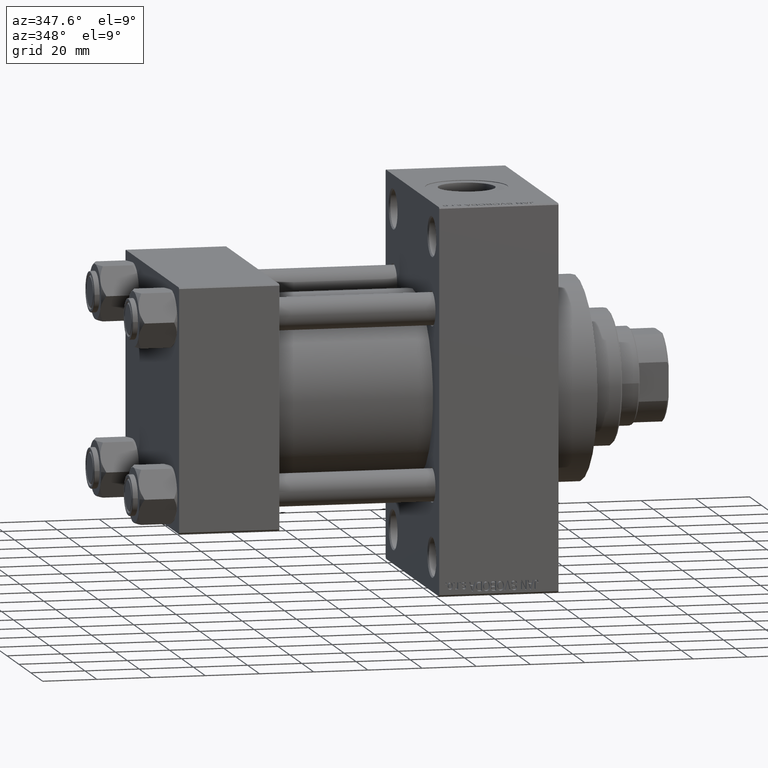
[diagram: clean part render]
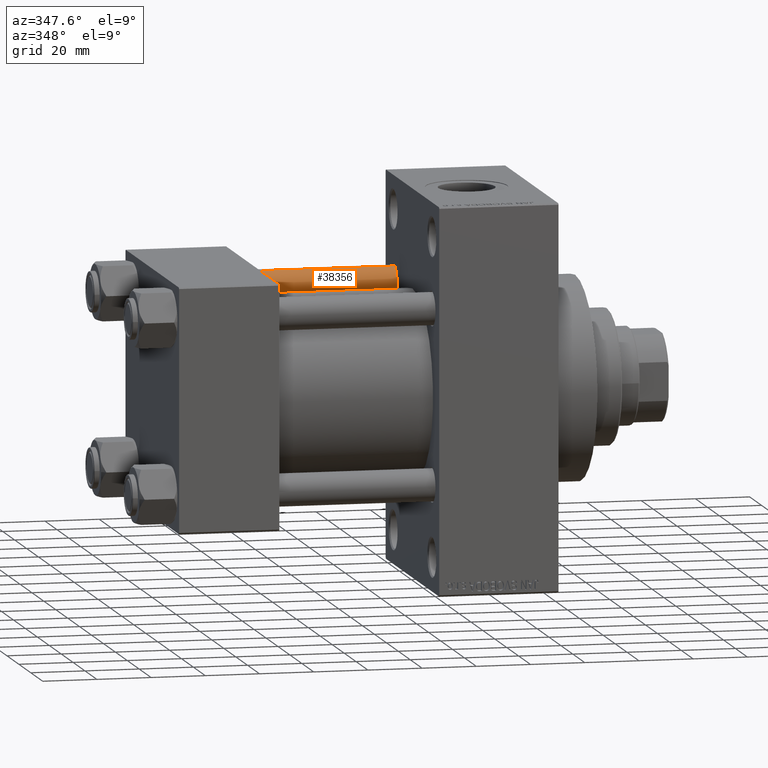
[diagram: same view with one face highlighted and labeled with its STEP entity id]
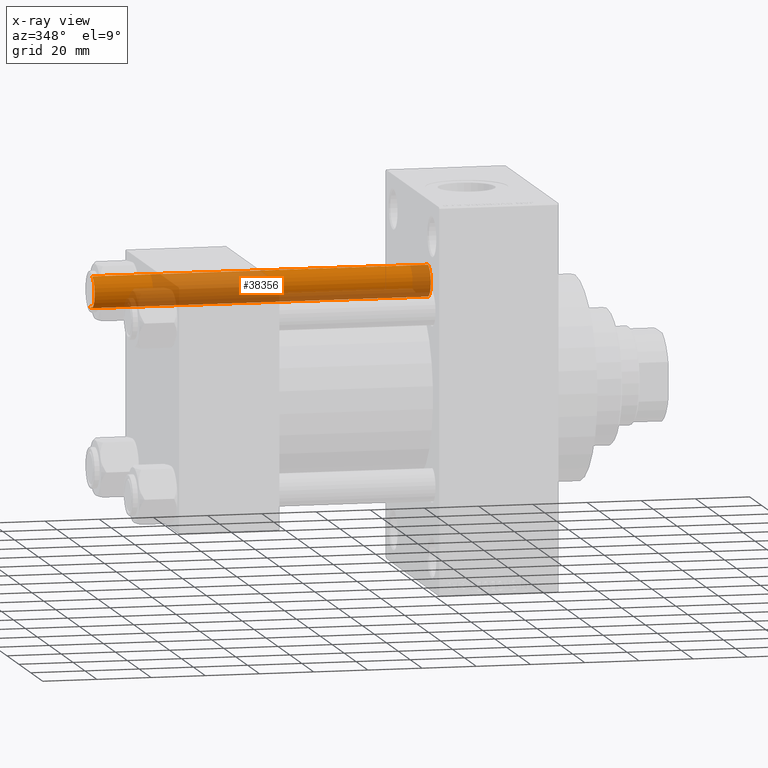
[diagram: x-ray of the same camera — body ghosted, the highlighted face saturated]
A machine part, auxiliary view. The second image highlights one B-rep face of the part: STEP entity #38356.
The next image is the same camera in x-ray: the body ghosted, the highlighted face saturated — about 57% of this face is hidden behind the body in this view.
In plain terms, the highlighted cylindrical surface (edge-blend (fillet) strip) has radius 6 mm, axis along (-1, -0, 0).
Its self-contained STEP definition (entity closure, byte-faithful):
#1490 = DIRECTION ( 'NONE',  ( -0.000000000000000000, -0.000000000000000000, 1.000000000000000000 ) ) ;
#1529 = VERTEX_POINT ( 'NONE', #5859 ) ;
#1657 = EDGE_CURVE ( 'NONE', #21189, #8514, #6330, .T. ) ;
#2289 = EDGE_CURVE ( 'NONE', #31427, #1529, #16494, .T. ) ;
#3182 = VECTOR ( 'NONE', #12676, 1000.000000000000000 ) ;
#5859 = CARTESIAN_POINT ( 'NONE',  ( 6.000000000000000888, 7.347880794884120722E-16, 0.4999999999999865663 ) ) ;
#6330 = LINE ( 'NONE', #20904, #31313 ) ;
#7357 = ORIENTED_EDGE ( 'NONE', *, *, #1657, .T. ) ;
#8514 = VERTEX_POINT ( 'NONE', #35728 ) ;
#12216 = DIRECTION ( 'NONE',  ( 1.000000000000000000, 0.000000000000000000, 0.000000000000000000 ) ) ;
#12395 = CIRCLE ( 'NONE', #22283, 6.000000000000000888 ) ;
#12676 = DIRECTION ( 'NONE',  ( -0.000000000000000000, -0.000000000000000000, -1.000000000000000000 ) ) ;
#15251 = AXIS2_PLACEMENT_3D ( 'NONE', #39301, #21409, #21648 ) ;
#15615 = ORIENTED_EDGE ( 'NONE', *, *, #2289, .F. ) ;
#16494 = LINE ( 'NONE', #26795, #3182 ) ;
#16739 = CYLINDRICAL_SURFACE ( 'NONE', #19823, 6.000000000000000888 ) ;
#19453 = CARTESIAN_POINT ( 'NONE',  ( 0.000000000000000000, 0.000000000000000000, 125.0000000000000000 ) ) ;
#19823 = AXIS2_PLACEMENT_3D ( 'NONE', #19453, #42296, #27741 ) ;
#19830 = CARTESIAN_POINT ( 'NONE',  ( 6.000000000000000888, 7.347880794884120722E-16, 124.5000000000000000 ) ) ;
#20321 = CARTESIAN_POINT ( 'NONE',  ( 0.000000000000000000, 0.000000000000000000, 0.4999999999999865663 ) ) ;
#20904 = CARTESIAN_POINT ( 'NONE',  ( -6.000000000000000888, 0.000000000000000000, 125.0000000000000000 ) ) ;
#21189 = VERTEX_POINT ( 'NONE', #21880 ) ;
#21409 = DIRECTION ( 'NONE',  ( 0.000000000000000000, 0.000000000000000000, -1.000000000000000000 ) ) ;
#21648 = DIRECTION ( 'NONE',  ( 1.000000000000000000, 0.000000000000000000, 0.000000000000000000 ) ) ;
#21880 = CARTESIAN_POINT ( 'NONE',  ( -6.000000000000000888, 0.000000000000000000, 124.5000000000000000 ) ) ;
#22283 = AXIS2_PLACEMENT_3D ( 'NONE', #20321, #1490, #12216 ) ;
#25859 = EDGE_LOOP ( 'NONE', ( #15615, #31876, #7357, #28080 ) ) ;
#26795 = CARTESIAN_POINT ( 'NONE',  ( 6.000000000000000888, 7.347880794884120722E-16, 125.0000000000000000 ) ) ;
#27741 = DIRECTION ( 'NONE',  ( -1.000000000000000000, 0.000000000000000000, 0.000000000000000000 ) ) ;
#28080 = ORIENTED_EDGE ( 'NONE', *, *, #43600, .T. ) ;
#31313 = VECTOR ( 'NONE', #35458, 1000.000000000000000 ) ;
#31427 = VERTEX_POINT ( 'NONE', #19830 ) ;
#31876 = ORIENTED_EDGE ( 'NONE', *, *, #38985, .T. ) ;
#33546 = CIRCLE ( 'NONE', #15251, 6.000000000000000888 ) ;
#35458 = DIRECTION ( 'NONE',  ( -0.000000000000000000, -0.000000000000000000, -1.000000000000000000 ) ) ;
#35728 = CARTESIAN_POINT ( 'NONE',  ( -6.000000000000000888, 0.000000000000000000, 0.4999999999999865663 ) ) ;
#38356 = ADVANCED_FACE ( 'NONE', ( #43008 ), #16739, .T. ) ;
#38985 = EDGE_CURVE ( 'NONE', #31427, #21189, #33546, .T. ) ;
#39301 = CARTESIAN_POINT ( 'NONE',  ( 0.000000000000000000, 0.000000000000000000, 124.5000000000000000 ) ) ;
#42296 = DIRECTION ( 'NONE',  ( -0.000000000000000000, -0.000000000000000000, -1.000000000000000000 ) ) ;
#43008 = FACE_OUTER_BOUND ( 'NONE', #25859, .T. ) ;
#43600 = EDGE_CURVE ( 'NONE', #8514, #1529, #12395, .T. ) ;